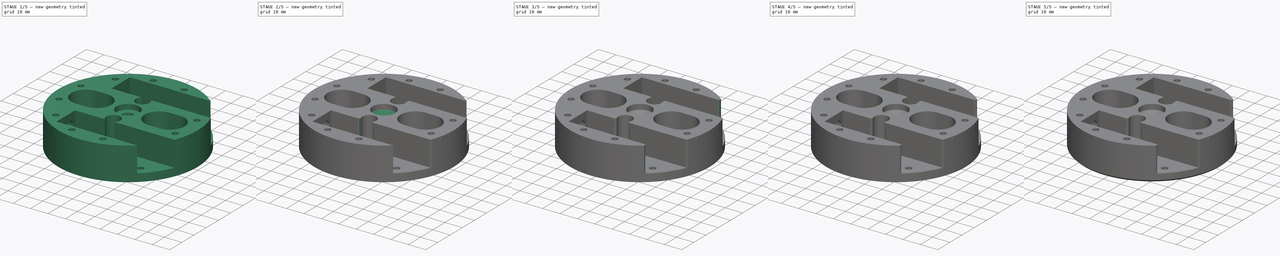
[diagram: build sequence overview — one tinted view per stage of 5, left to right]
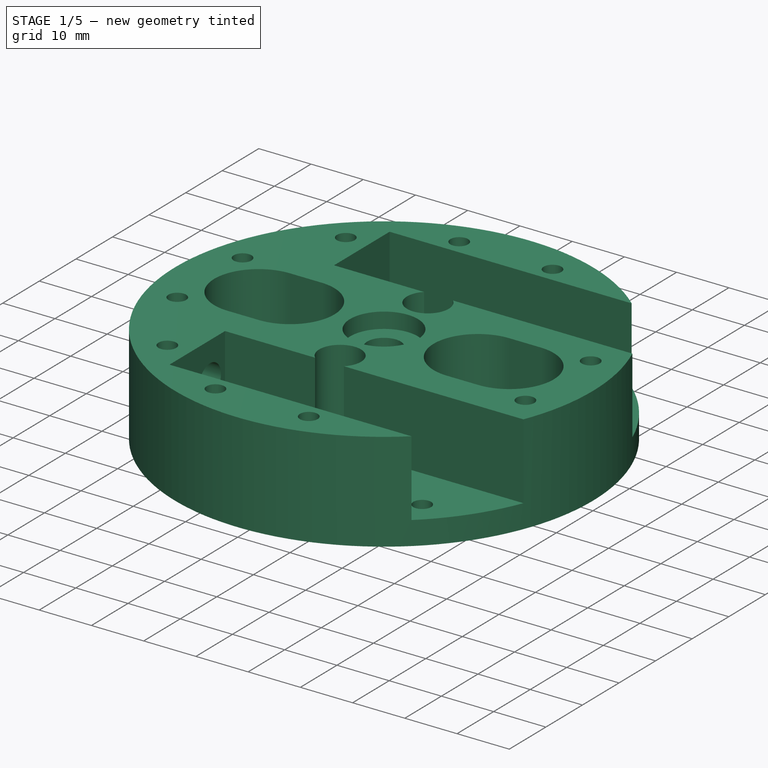
[diagram: stage 1 of 5 — iso view after this stage's code; geometry added in this stage tinted green]
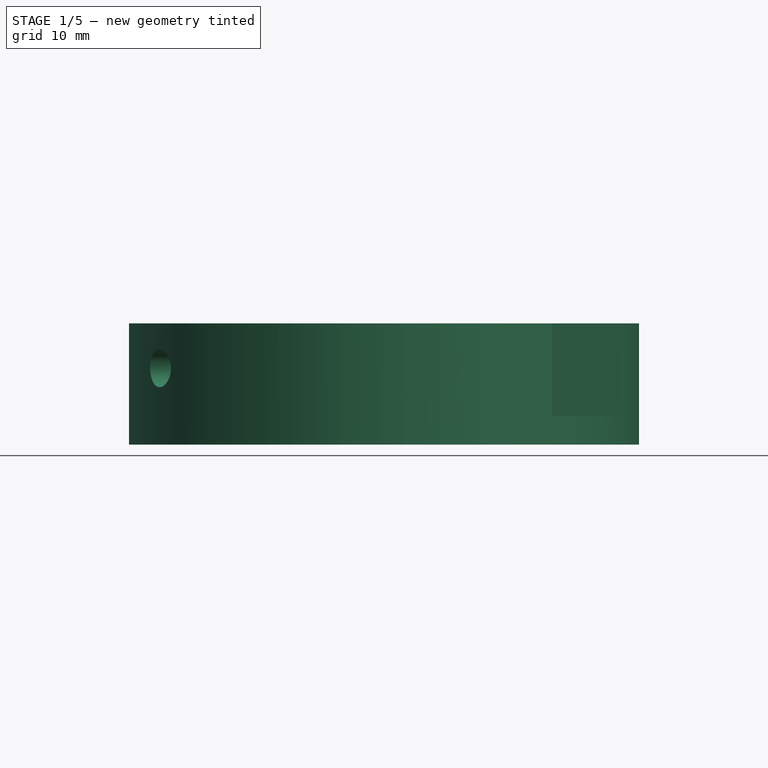
[diagram: stage 1 of 5 — front view after this stage's code; geometry added in this stage tinted green]
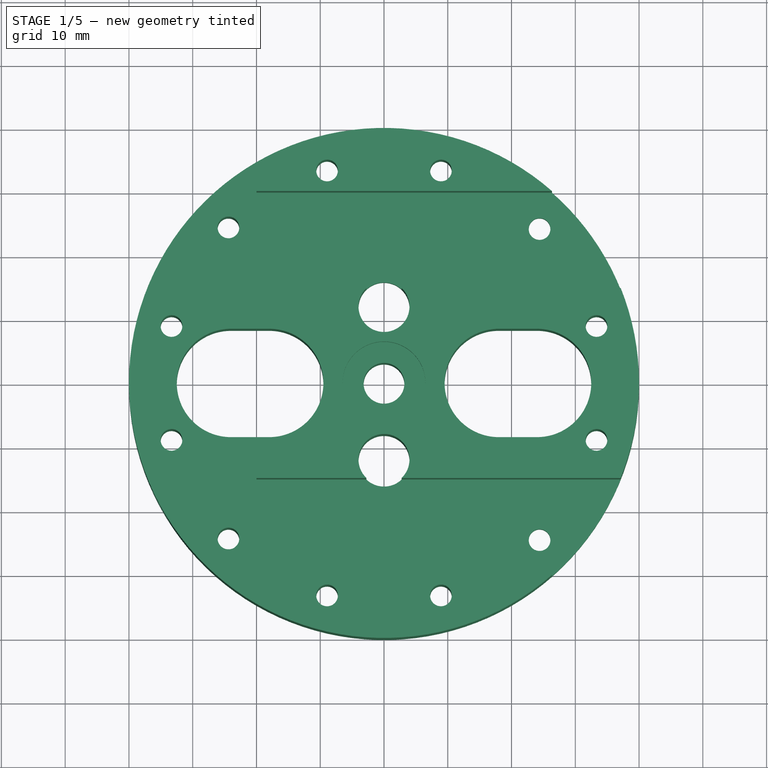
[diagram: stage 1 of 5 — top view after this stage's code; geometry added in this stage tinted green]
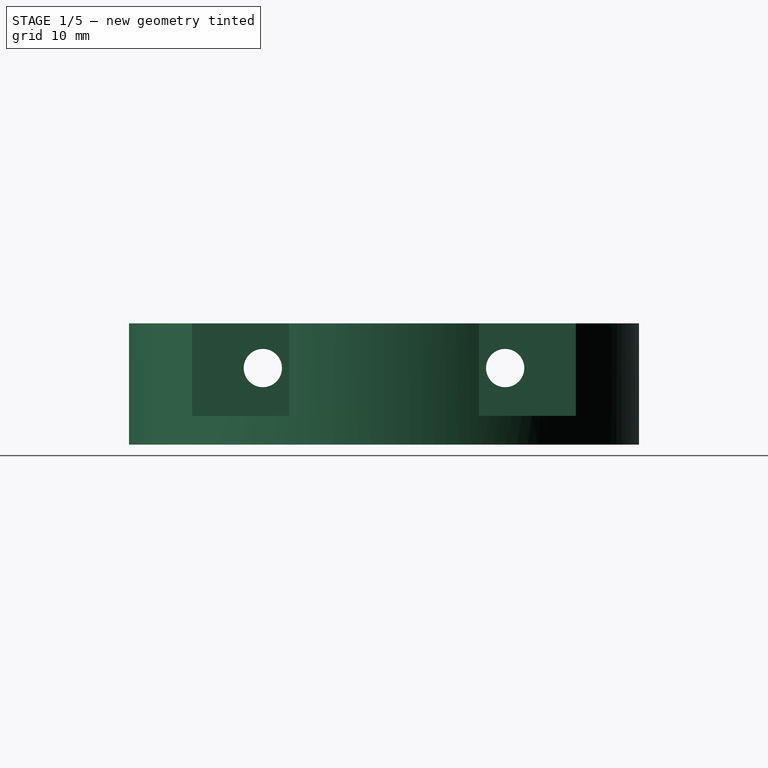
[diagram: stage 1 of 5 — right view after this stage's code; geometry added in this stage tinted green]
FCSTD DOCUMENT  (FreeCAD 0.16R6706 (Git))
Label: LegMountV2-15mm
License: All rights reserved
LicenseURL: http://en.wikipedia.org/wiki/All_rights_reserved
objects: PartDesign::Chamfer×14, PartDesign::Fillet×10, Sketcher::SketchObject×5, PartDesign::Pocket×4, PartDesign::Pad×1, PartDesign::PolarPattern×1
note: 40 computed .brp shape members not serialized (recipe doc carries the construction recipe); baked Part::Feature solids carry a one-line shape summary decoded from their .brp

FEATURE [Sketcher::SketchObject] Sketch020
  Placement = pos=(0,0,0) rot=(1,0,0;3.14159rad)
  sketch-geometry (13):
    g0: Circle [constr] CenterX=0 CenterY=0 CenterZ=0 NormalX=0 NormalY=0 NormalZ=1 Radius=25
    g1: Circle CenterX=0 CenterY=0 CenterZ=0 NormalX=0 NormalY=0 NormalZ=1 Radius=3.2
    g2: Circle CenterX=0 CenterY=0 CenterZ=0 NormalX=0 NormalY=0 NormalZ=1 Radius=40
    g3: ArcOfCircle CenterX=-24 CenterY=0 CenterZ=0 NormalX=0 NormalY=0 NormalZ=1 Radius=8.5 StartAngle=1.5708 EndAngle=4.71239
    g4: ArcOfCircle CenterX=-18 CenterY=0 CenterZ=0 NormalX=0 NormalY=0 NormalZ=1 Radius=8.5 StartAngle=4.71239 EndAngle=7.85398
    g5: LineSegment StartX=-24 StartY=-8.5 StartZ=0 EndX=-18 EndY=-8.5 EndZ=0
    g6: LineSegment StartX=-24 StartY=8.5 StartZ=0 EndX=-18 EndY=8.5 EndZ=0
    g7: ArcOfCircle CenterX=18 CenterY=0 CenterZ=0 NormalX=0 NormalY=0 NormalZ=1 Radius=8.5 StartAngle=1.5708 EndAngle=4.71239
    g8: ArcOfCircle CenterX=24 CenterY=0 CenterZ=0 NormalX=0 NormalY=0 NormalZ=1 Radius=8.5 StartAngle=4.71239 EndAngle=7.85398
    g9: LineSegment StartX=18 StartY=-8.5 StartZ=0 EndX=24 EndY=-8.5 EndZ=0
    g10: LineSegment StartX=18 StartY=8.5 StartZ=0 EndX=24 EndY=8.5 EndZ=0
    g11: Circle CenterX=0 CenterY=12 CenterZ=0 NormalX=0 NormalY=0 NormalZ=1 Radius=4
    g12: Circle CenterX=0 CenterY=-12 CenterZ=0 NormalX=0 NormalY=0 NormalZ=1 Radius=4
  constraints (31):
    c: Radius(g1) = 3.2
    c: Radius(g0) = 25
    c: Radius(g2) = 40
    c: Coincident(g1,g-1)
    c: Coincident(g0,g-1)
    c: Coincident(g2,g-1)
    c: Tangent(g3,g6) = 1.5708
    c: Tangent(g3,g5) = -1.5708
    c: Tangent(g5,g4) = -1.5708
    c: Tangent(g6,g4) = 1.5708
    c: Horizontal(g5)
    c: Equal(g3,g4)
    c: PointOnObject(g3,g-1)
    c: Tangent(g7,g10) = 1.5708
    c: Tangent(g7,g9) = -1.5708
    c: Tangent(g9,g8) = -1.5708
    c: Tangent(g10,g8) = 1.5708
    c: Horizontal(g9)
    c: Equal(g7,g8)
    c: PointOnObject(g7,g-1)
    c: Radius(g3) = 8.5
    c: Radius(g8) = 8.5
    c: DistanceX(g3,g4) = 6
    c: DistanceX(g7,g8) = 6
    c: Symmetric(g4,g7,g-1)
    c: DistanceX(g4,g-1) = 18
    c: PointOnObject(g11,g-2)
    c: Symmetric(g12,g11,g-1)
    c: Radius(g12) = 4
    c: Equal(g12,g11)
    c: DistanceY(g12,g11) = 24
FEATURE [PartDesign::Pad] Pad
  Length = 19
  Length2 = 100
  Placement = pos=(0,0,0) rot=(1,0,0;3.14159rad)
  Sketch = -> Sketch020
  Type = 0
FEATURE [Sketcher::SketchObject] Sketch  label="RodRecess"
  Support = -> Pad [Face13]
  sketch-geometry (12):
    g0: LineSegment StartX=-20 StartY=30.1 StartZ=0 EndX=40 EndY=30.1 EndZ=0
    g1: LineSegment StartX=40 StartY=30.1 StartZ=0 EndX=40 EndY=14.9 EndZ=0
    g2: LineSegment StartX=40 StartY=14.9 StartZ=0 EndX=-20 EndY=14.9 EndZ=0
    g3: LineSegment StartX=-20 StartY=14.9 StartZ=0 EndX=-20 EndY=30.1 EndZ=0
    g4: LineSegment StartX=-20 StartY=-14.9 StartZ=0 EndX=40 EndY=-14.9 EndZ=0
    g5: LineSegment StartX=40 StartY=-14.9 StartZ=0 EndX=40 EndY=-30.1 EndZ=0
    g6: LineSegment StartX=40 StartY=-30.1 StartZ=0 EndX=-20 EndY=-30.1 EndZ=0
    g7: LineSegment StartX=-20 StartY=-30.1 StartZ=0 EndX=-20 EndY=-14.9 EndZ=0
    g8: LineSegment [constr] StartX=-20 StartY=14.9 StartZ=0 EndX=-20 EndY=-14.9 EndZ=0
    g9: LineSegment [constr] StartX=40 StartY=14.9 StartZ=0 EndX=40 EndY=-14.9 EndZ=0
    g10: GeomPoint [constr] X=-20 Y=22.5 Z=0
    g11: GeomPoint [constr] X=-20 Y=-22.5 Z=0
  constraints (30):
    c: Coincident(g0,g1)
    c: Coincident(g1,g2)
    c: Coincident(g2,g3)
    c: Coincident(g3,g0)
    c: Horizontal(g0)
    c: Horizontal(g2)
    c: Vertical(g1)
    c: Vertical(g3)
    c: Coincident(g4,g5)
    c: Coincident(g5,g6)
    c: Coincident(g6,g7)
    c: Coincident(g7,g4)
    c: Horizontal(g4)
    c: Horizontal(g6)
    c: Vertical(g5)
    c: Vertical(g7)
    c: Coincident(g8,g2)
    c: Coincident(g8,g4)
    c: Vertical(g8)
    c: Coincident(g9,g1)
    c: Coincident(g9,g4)
    c: Vertical(g9)
    c: DistanceY(g2,g0) = 15.2
    c: DistanceX(g0,g0) = 60
    c: Symmetric(g0,g5,g-1)
    c: Symmetric(g1,g4,g-1)
    c: DistanceX(g6,g-1) = 20
    c: Symmetric(g0,g2,g10)
    c: Symmetric(g4,g6,g11)
    c: DistanceY(g11,g10) = 45
FEATURE [PartDesign::Pocket] Pocket
  Length = 14.5
  Placement = pos=(0,0,0) rot=(1,0,0;3.14159rad)
  Sketch = -> Sketch
  Type = 0
FEATURE [Sketcher::SketchObject] Sketch022  label="OuterMountingHoles"
  Support = -> Pocket [Face2]
  sketch-geometry (5):
    g0: Circle CenterX=33.3244 CenterY=8.92926 CenterZ=0 NormalX=0 NormalY=0 NormalZ=1 Radius=1.7
    g1: Circle [constr] CenterX=0 CenterY=0 CenterZ=0 NormalX=0 NormalY=0 NormalZ=1 Radius=38.6
    g2: GeomPoint [constr] X=38.6 Y=0 Z=0
    g3: Circle [constr] CenterX=0 CenterY=0 CenterZ=0 NormalX=0 NormalY=0 NormalZ=1 Radius=30
    g4: LineSegment [constr] StartX=0 StartY=0 StartZ=0 EndX=33.3244 EndY=8.92926 EndZ=0
  constraints (11):
    c: Radius(g0) = 1.7
    c: Coincident(g1,g-1)
    c: Radius(g1) = 38.6
    c: PointOnObject(g2,g-1)
    c: PointOnObject(g2,g1)
    c: Coincident(g3,g-1)
    c: Radius(g3) = 30
    c: Coincident(g4,g-1)
    c: Coincident(g4,g0)
    c: Distance(g4) = 34.5
    c: Angle(g-1,g4) = 0.261799
FEATURE [PartDesign::Pocket] Pocket002
  Length = 5
  Placement = pos=(0,0,0) rot=(1,0,0;3.14159rad)
  Sketch = -> Sketch022
  Type = 1
FEATURE [PartDesign::PolarPattern] PolarPattern001  label="FinalBeforeChamfer"
  Angle = 360
  Axis = -> Sketch022 [N_Axis]
  Occurrences = 12
  Originals = -> [Pocket002]
  Placement = pos=(0,0,0) rot=(1,0,0;3.14159rad)
FEATURE [Sketcher::SketchObject] Sketch024
  Placement = pos=(-20,0,0) rot=(0.57735,-0.57735,0.57735;4.18879rad)
  Support = -> PolarPattern001 [Face14]
  sketch-geometry (2):
    g0: Circle CenterX=-19 CenterY=7 CenterZ=0 NormalX=0 NormalY=0 NormalZ=1 Radius=3
    g1: Circle CenterX=19 CenterY=7 CenterZ=0 NormalX=0 NormalY=0 NormalZ=1 Radius=3
  constraints (5):
    c: Symmetric(g0,g1,g-2)
    c: DistanceX(g0,g1) = 38
    c: Radius(g0) = 3
    c: Equal(g0,g1)
    c: DistanceY(g-1,g0) = 7
FEATURE [PartDesign::Pocket] Pocket003
  Length = 5
  Placement = pos=(0,0,0) rot=(1,0,0;3.14159rad)
  Sketch = -> Sketch024
  Type = 1
FEATURE [Sketcher::SketchObject] Sketch025
  Support = -> Pocket003 [Face3]
  sketch-geometry (1):
    g0: Circle CenterX=0 CenterY=0 CenterZ=0 NormalX=0 NormalY=0 NormalZ=1 Radius=6.5
  constraints (2):
    c: Radius(g0) = 6.5
    c: Coincident(g0,g-1)
FEATURE [PartDesign::Pocket] Pocket004
  Length = 3
  Placement = pos=(0,0,0) rot=(1,0,0;3.14159rad)
  Sketch = -> Sketch025
  Type = 0
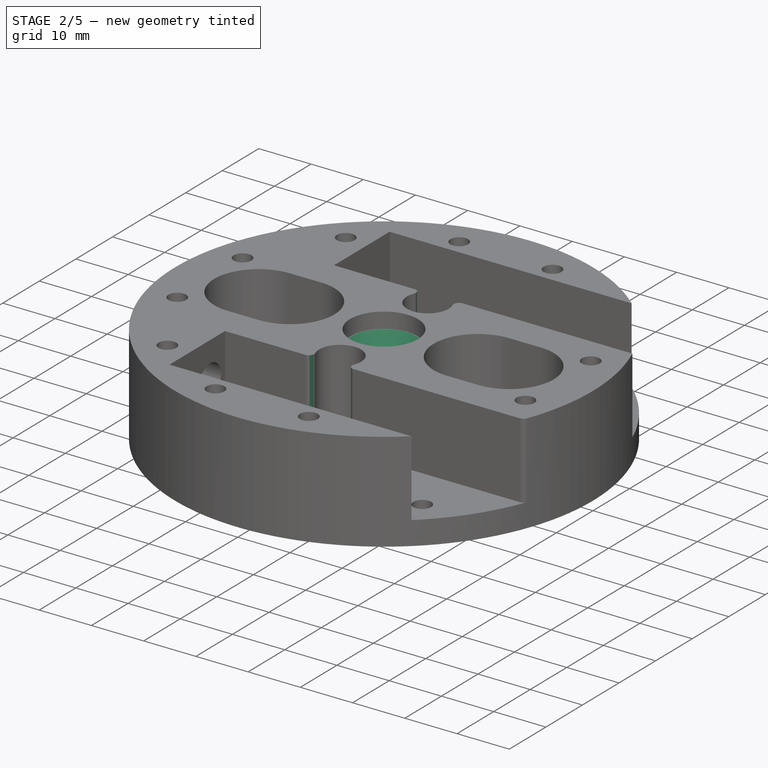
[diagram: stage 2 of 5 — iso view after this stage's code; geometry added in this stage tinted green]
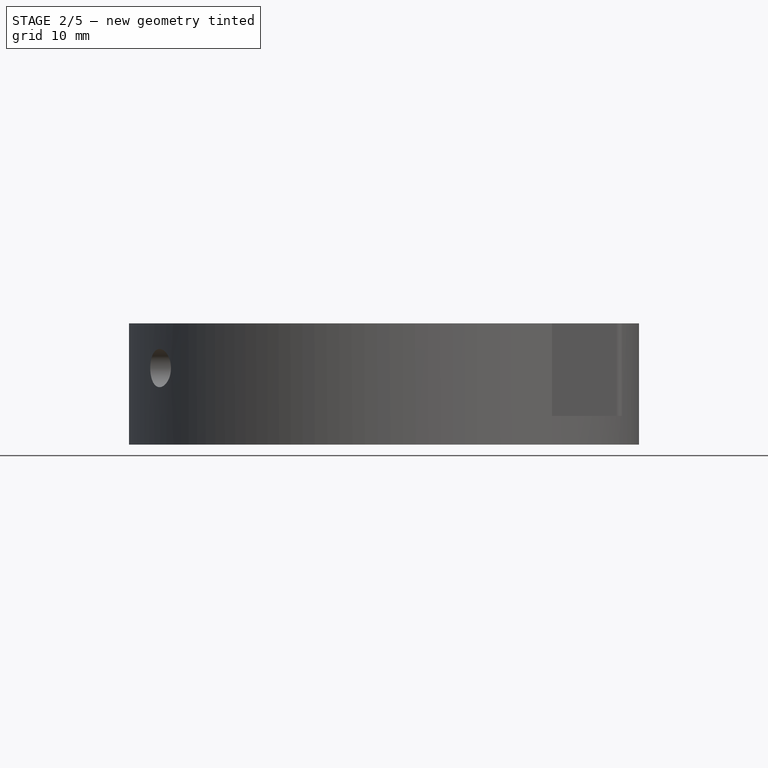
[diagram: stage 2 of 5 — front view after this stage's code; geometry added in this stage tinted green]
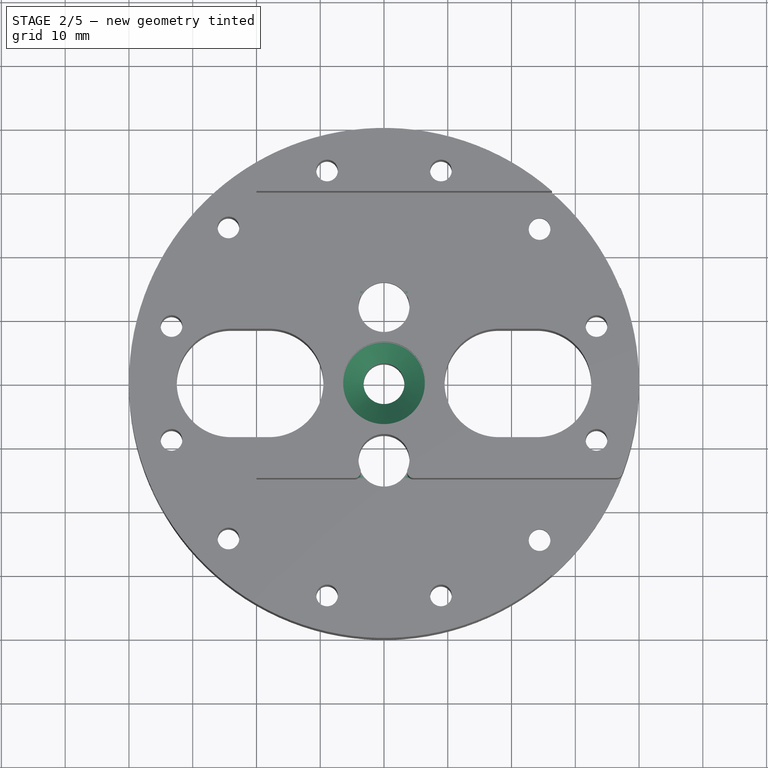
[diagram: stage 2 of 5 — top view after this stage's code; geometry added in this stage tinted green]
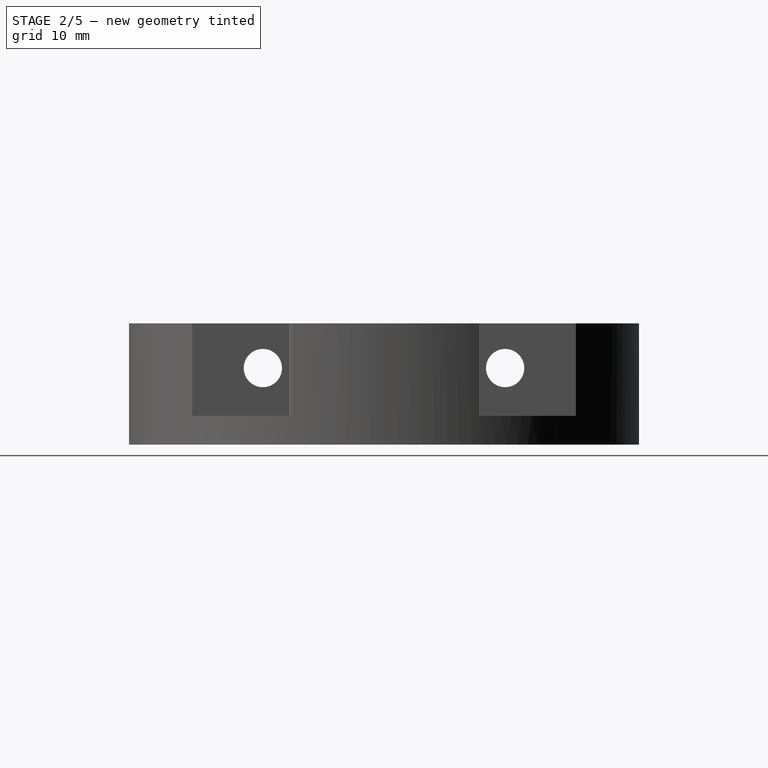
[diagram: stage 2 of 5 — right view after this stage's code; geometry added in this stage tinted green]
FEATURE [PartDesign::Chamfer] Chamfer
  Base = -> Pocket004 [Edge91]
  Placement = pos=(0,0,0) rot=(1,0,0;3.14159rad)
  Size = 3.2
FEATURE [PartDesign::Fillet] Fillet
  Base = -> Chamfer [Edge47]
  Placement = pos=(0,0,0) rot=(1,0,0;3.14159rad)
  Radius = 1
FEATURE [PartDesign::Fillet] Fillet001
  Base = -> Fillet [Edge7]
  Placement = pos=(0,0,0) rot=(1,0,0;3.14159rad)
  Radius = 1
FEATURE [PartDesign::Fillet] Fillet002
  Base = -> Fillet001 [Edge93]
  Placement = pos=(0,0,0) rot=(1,0,0;3.14159rad)
  Radius = 1
FEATURE [PartDesign::Fillet] Fillet003
  Base = -> Fillet002 [Edge43]
  Placement = pos=(0,0,0) rot=(1,0,0;3.14159rad)
  Radius = 1
FEATURE [PartDesign::Fillet] Fillet004
  Base = -> Fillet003 [Edge48]
  Placement = pos=(0,0,0) rot=(1,0,0;3.14159rad)
  Radius = 1
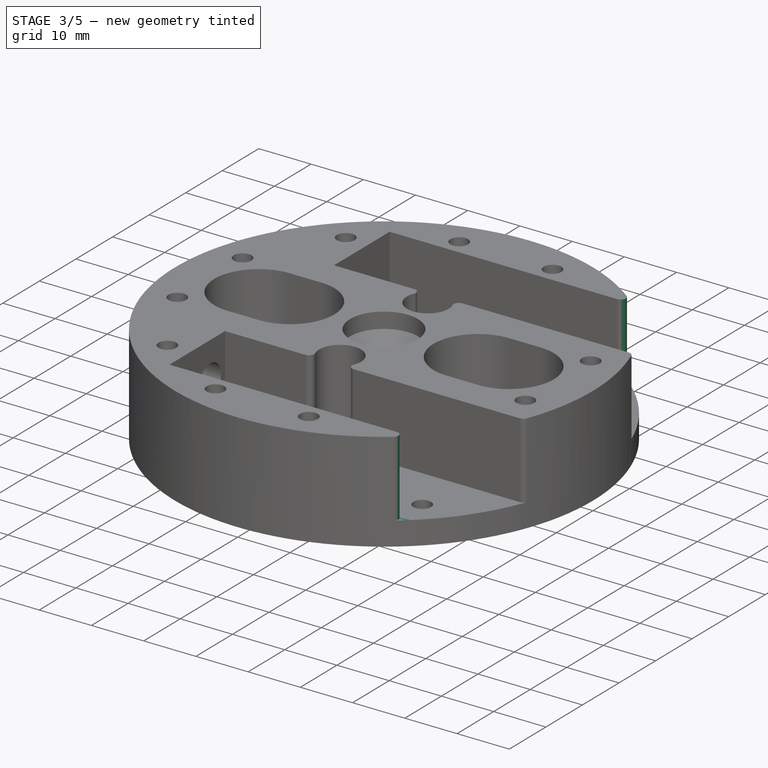
[diagram: stage 3 of 5 — iso view after this stage's code; geometry added in this stage tinted green]
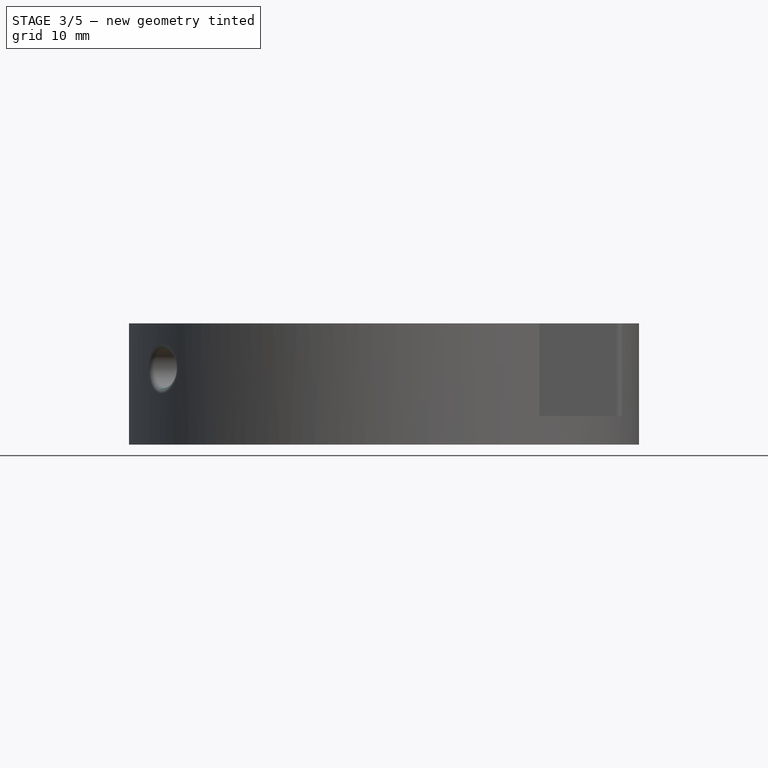
[diagram: stage 3 of 5 — front view after this stage's code; geometry added in this stage tinted green]
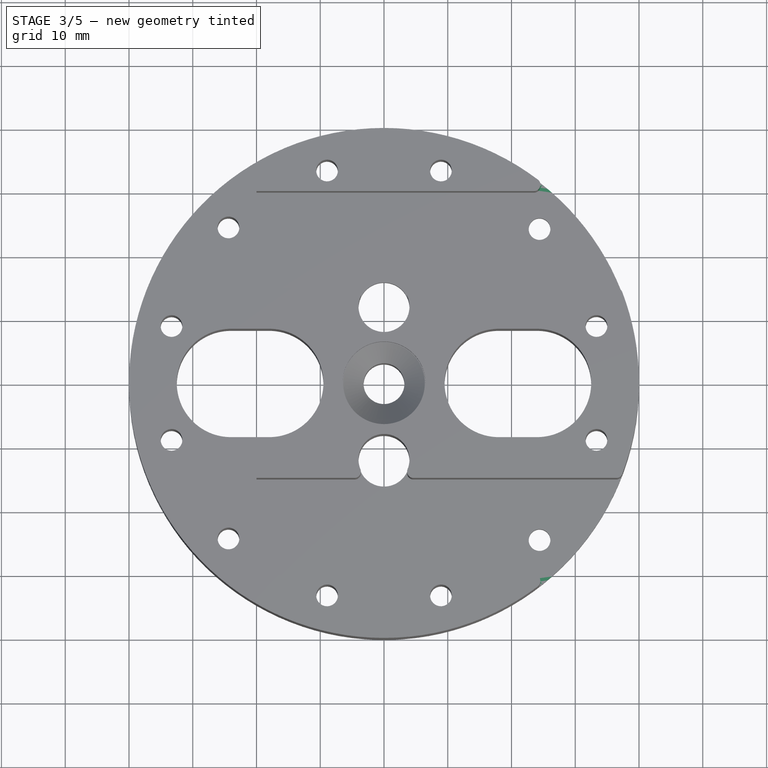
[diagram: stage 3 of 5 — top view after this stage's code; geometry added in this stage tinted green]
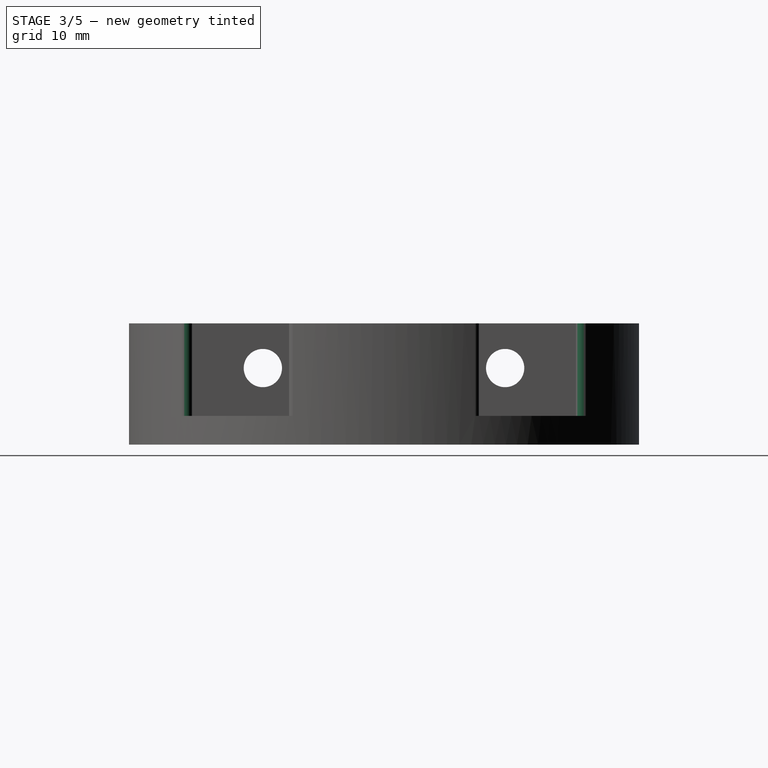
[diagram: stage 3 of 5 — right view after this stage's code; geometry added in this stage tinted green]
FEATURE [PartDesign::Fillet] Fillet005
  Base = -> Fillet004 [Edge51]
  Placement = pos=(0,0,0) rot=(1,0,0;3.14159rad)
  Radius = 1
FEATURE [PartDesign::Fillet] Fillet006
  Base = -> Fillet005 [Edge53]
  Placement = pos=(0,0,0) rot=(1,0,0;3.14159rad)
  Radius = 1
FEATURE [PartDesign::Fillet] Fillet007
  Base = -> Fillet006 [Edge53]
  Placement = pos=(0,0,0) rot=(1,0,0;3.14159rad)
  Radius = 1
FEATURE [PartDesign::Fillet] Fillet008
  Base = -> Fillet007 [Edge65]
  Placement = pos=(0,0,0) rot=(1,0,0;3.14159rad)
  Radius = 1
FEATURE [PartDesign::Fillet] Fillet009
  Base = -> Fillet008 [Edge18]
  Placement = pos=(0,0,0) rot=(1,0,0;3.14159rad)
  Radius = 1
FEATURE [PartDesign::Chamfer] Chamfer001
  Base = -> Fillet009 [Edge107]
  Placement = pos=(0,0,0) rot=(1,0,0;3.14159rad)
  Size = 1.7
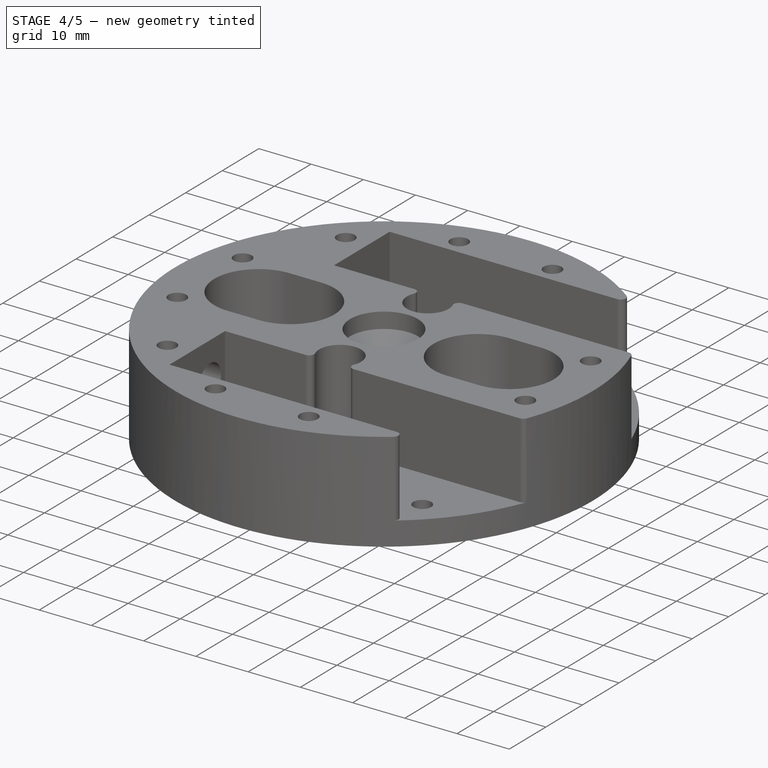
[diagram: stage 4 of 5 — iso view after this stage's code; geometry added in this stage tinted green]
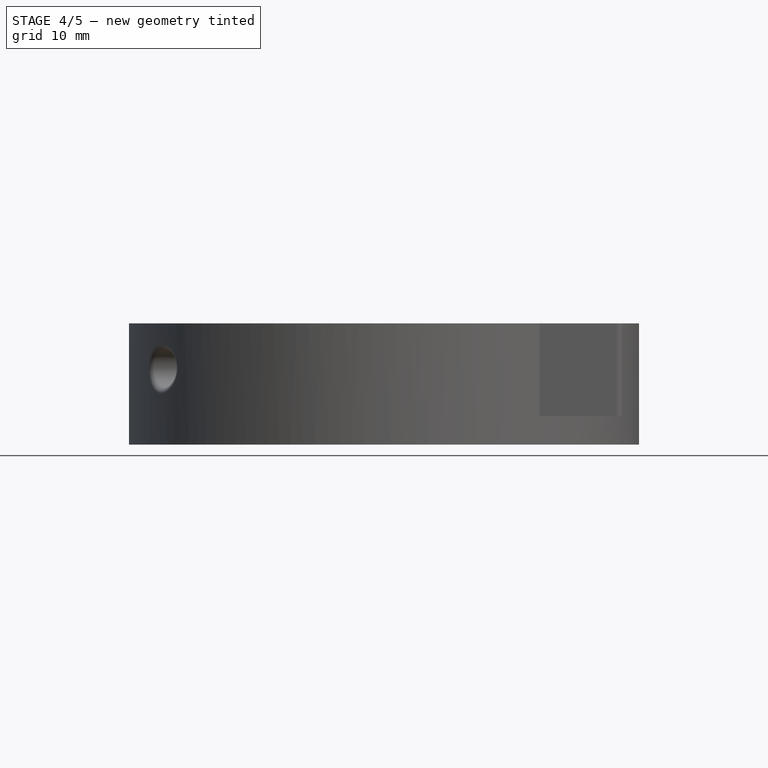
[diagram: stage 4 of 5 — front view after this stage's code; geometry added in this stage tinted green]
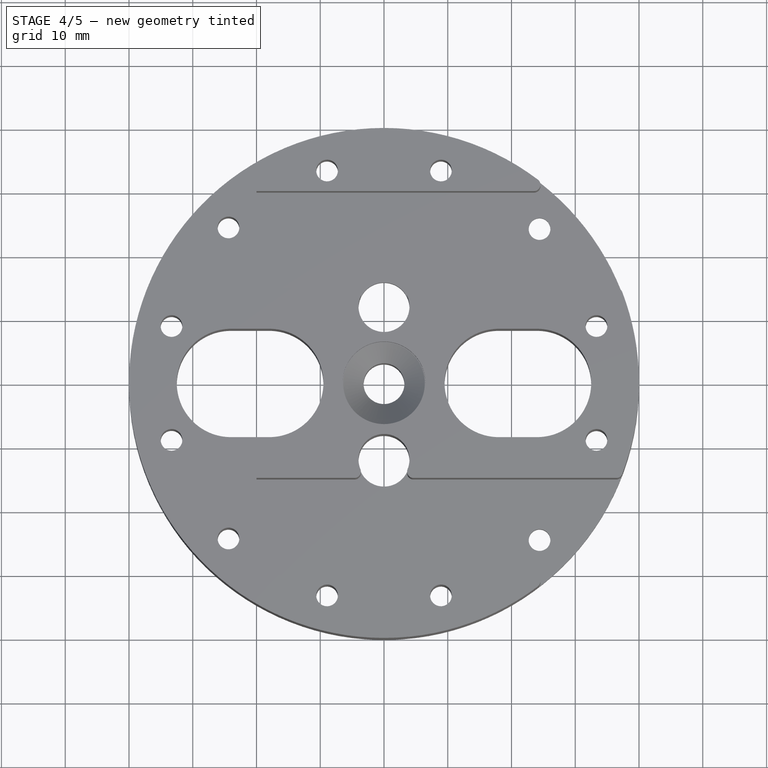
[diagram: stage 4 of 5 — top view after this stage's code; geometry added in this stage tinted green]
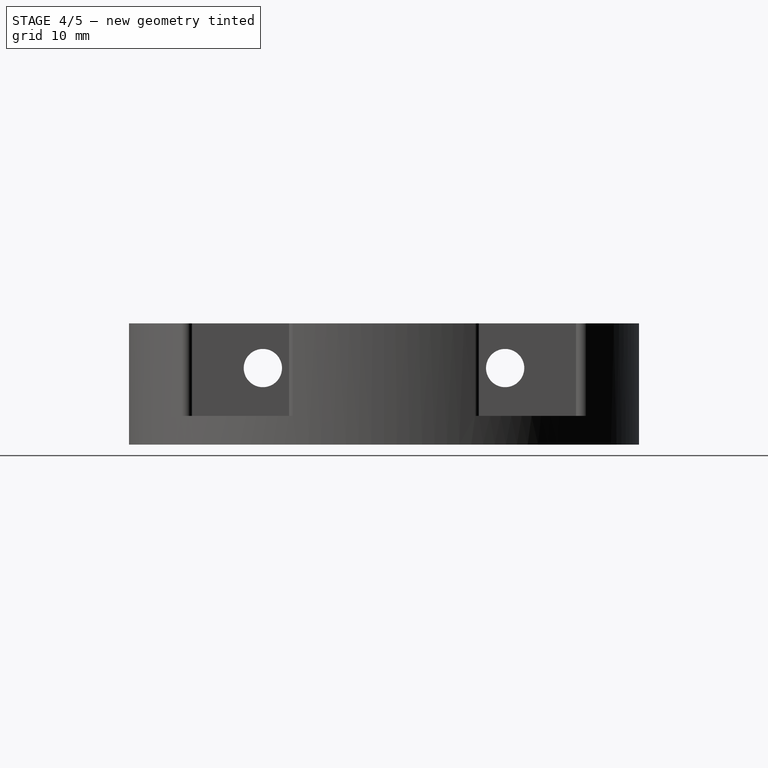
[diagram: stage 4 of 5 — right view after this stage's code; geometry added in this stage tinted green]
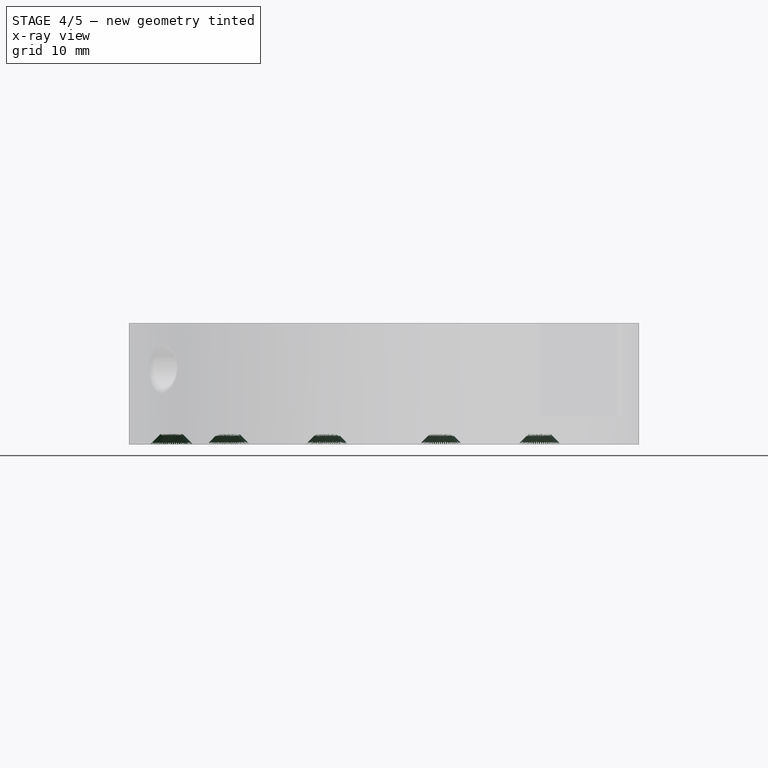
[diagram: stage 4 of 5 — x-ray composite at the front view; earlier geometry ghosted, this stage's added geometry solid]
FEATURE [PartDesign::Chamfer] Chamfer002
  Base = -> Chamfer001 [Edge24]
  Placement = pos=(0,0,0) rot=(1,0,0;3.14159rad)
  Size = 1.7
FEATURE [PartDesign::Chamfer] Chamfer003
  Base = -> Chamfer002 [Edge24]
  Placement = pos=(0,0,0) rot=(1,0,0;3.14159rad)
  Size = 1.7
FEATURE [PartDesign::Chamfer] Chamfer004
  Base = -> Chamfer003 [Edge16]
  Placement = pos=(0,0,0) rot=(1,0,0;3.14159rad)
  Size = 1.7
FEATURE [PartDesign::Chamfer] Chamfer005
  Base = -> Chamfer004 [Edge17]
  Placement = pos=(0,0,0) rot=(1,0,0;3.14159rad)
  Size = 1.7
FEATURE [PartDesign::Chamfer] Chamfer006
  Base = -> Chamfer005 [Edge7]
  Placement = pos=(0,0,0) rot=(1,0,0;3.14159rad)
  Size = 1.7
FEATURE [PartDesign::Chamfer] Chamfer007
  Base = -> Chamfer006 [Edge10]
  Placement = pos=(0,0,0) rot=(1,0,0;3.14159rad)
  Size = 1.7
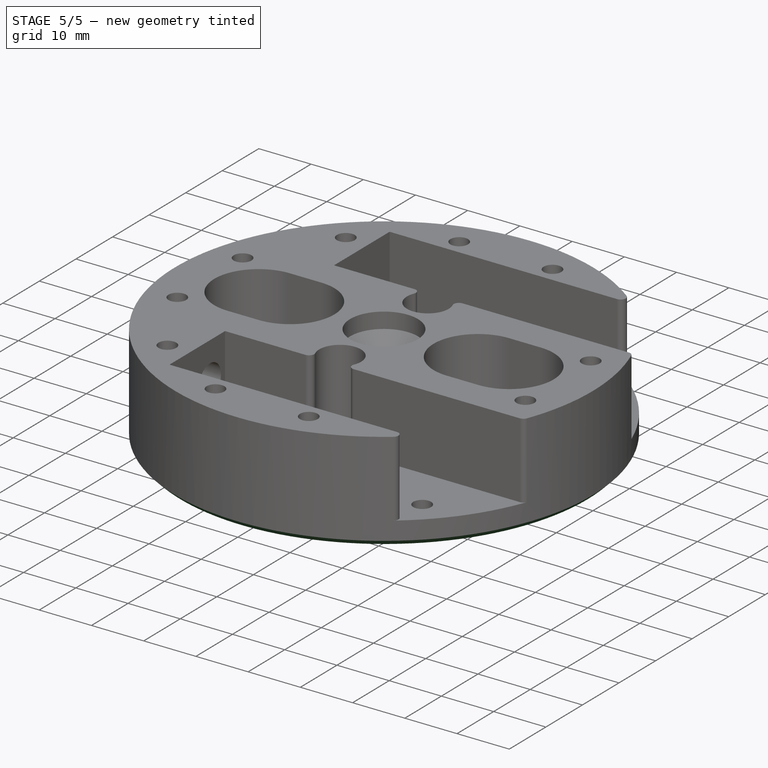
[diagram: stage 5 of 5 — iso view after this stage's code; geometry added in this stage tinted green]
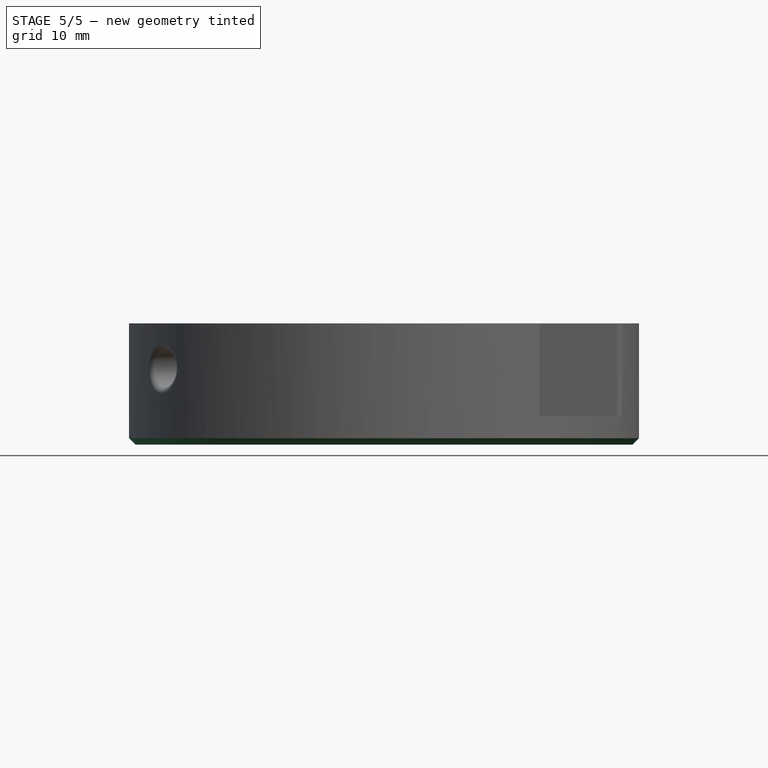
[diagram: stage 5 of 5 — front view after this stage's code; geometry added in this stage tinted green]
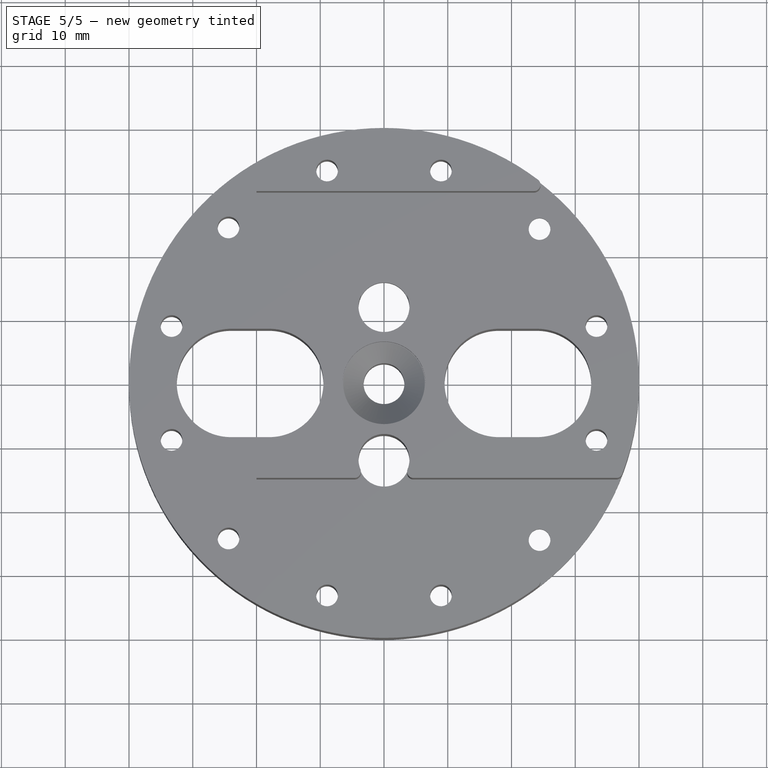
[diagram: stage 5 of 5 — top view after this stage's code; geometry added in this stage tinted green]
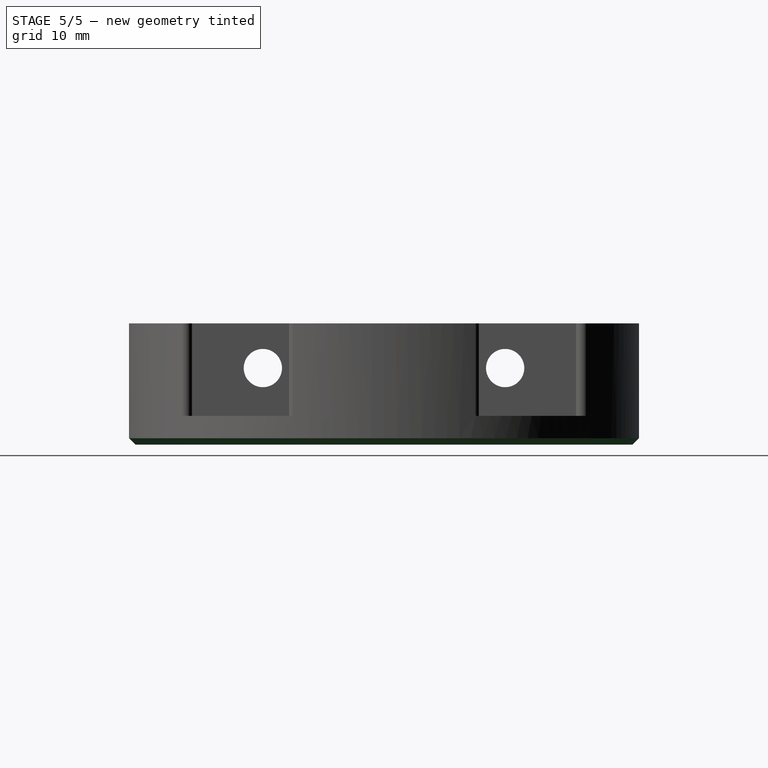
[diagram: stage 5 of 5 — right view after this stage's code; geometry added in this stage tinted green]
FEATURE [PartDesign::Chamfer] Chamfer008
  Base = -> Chamfer007 [Edge17]
  Placement = pos=(0,0,0) rot=(1,0,0;3.14159rad)
  Size = 1.7
FEATURE [PartDesign::Chamfer] Chamfer009
  Base = -> Chamfer008 [Edge16]
  Placement = pos=(0,0,0) rot=(1,0,0;3.14159rad)
  Size = 1.7
FEATURE [PartDesign::Chamfer] Chamfer010
  Base = -> Chamfer009 [Edge24]
  Placement = pos=(0,0,0) rot=(1,0,0;3.14159rad)
  Size = 1.7
FEATURE [PartDesign::Chamfer] Chamfer011
  Base = -> Chamfer010 [Edge19]
  Placement = pos=(0,0,0) rot=(1,0,0;3.14159rad)
  Size = 1.7
FEATURE [PartDesign::Chamfer] Chamfer012
  Base = -> Chamfer011 [Edge24]
  Placement = pos=(0,0,0) rot=(1,0,0;3.14159rad)
  Size = 1.7
FEATURE [PartDesign::Chamfer] Chamfer013
  Base = -> Chamfer012 [Edge13]
  Placement = pos=(0,0,0) rot=(1,0,0;3.14159rad)
  Size = 1
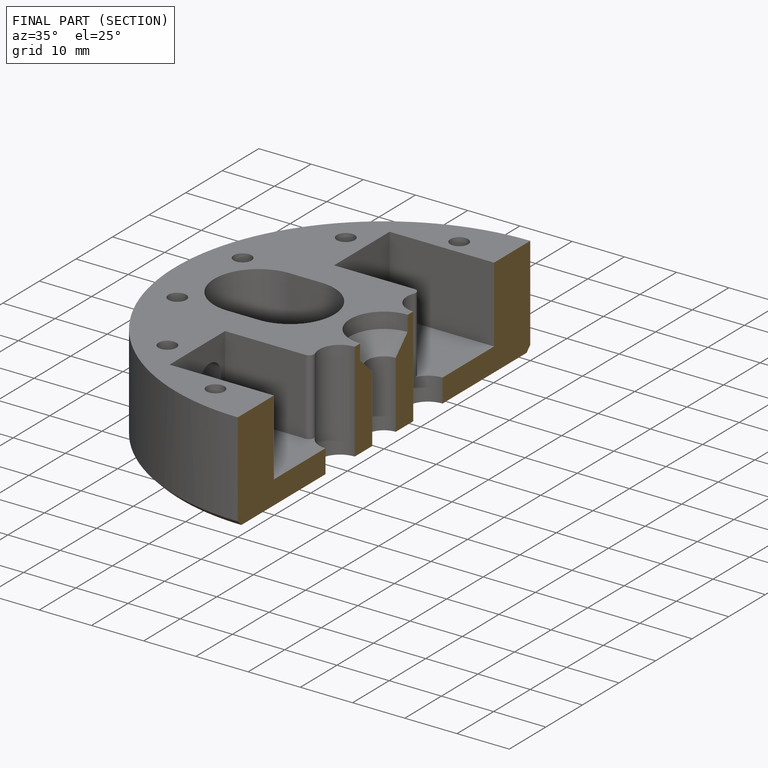
[diagram: finished part — half-section view (interior)]
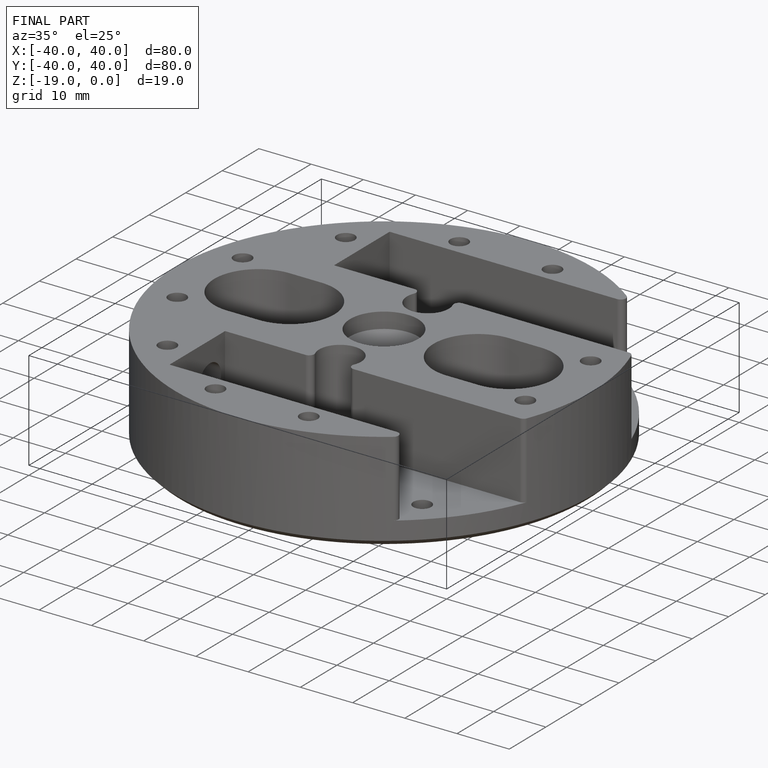
[diagram: finished part — iso view with bounding-box wireframe]
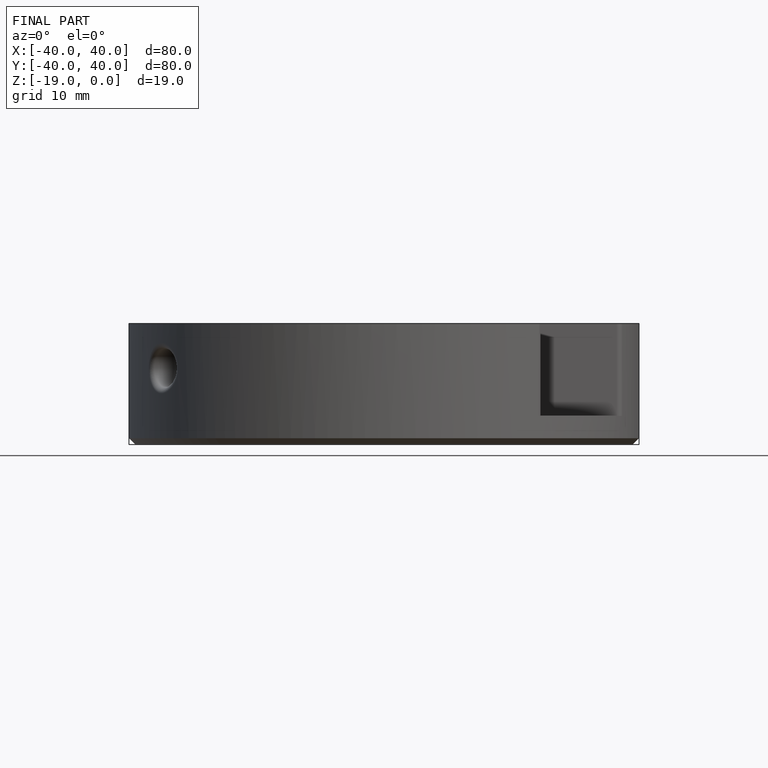
[diagram: finished part — front view with bounding-box wireframe]
